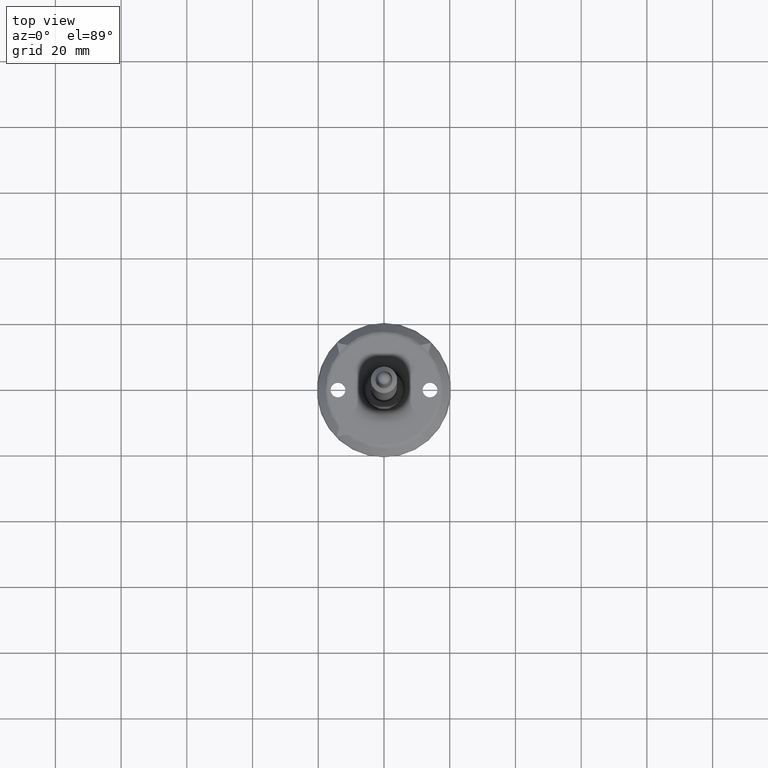
[diagram: clean part render]
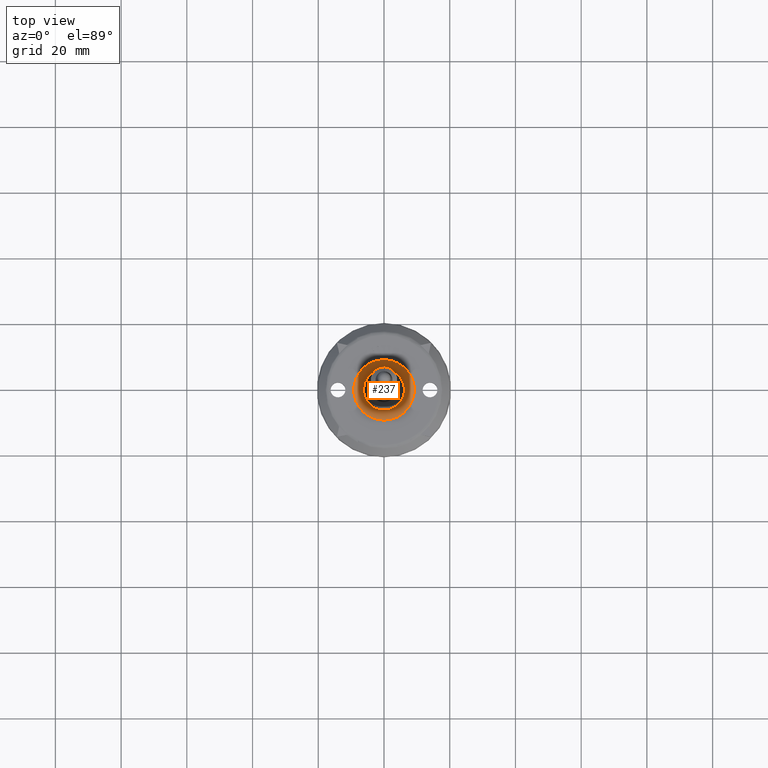
[diagram: same view with one face highlighted and labeled with its STEP entity id]
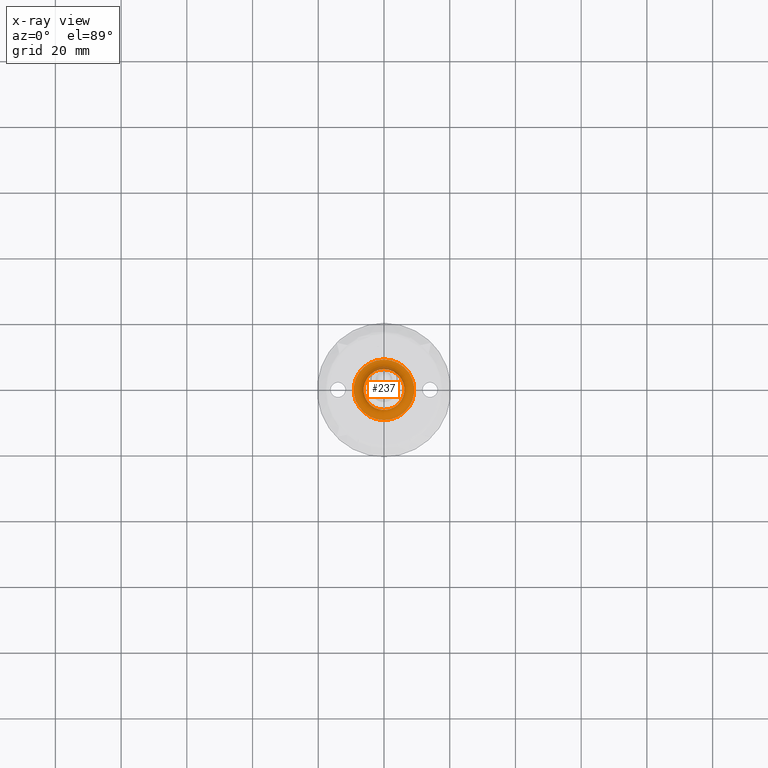
[diagram: x-ray of the same camera — body ghosted, the highlighted face saturated]
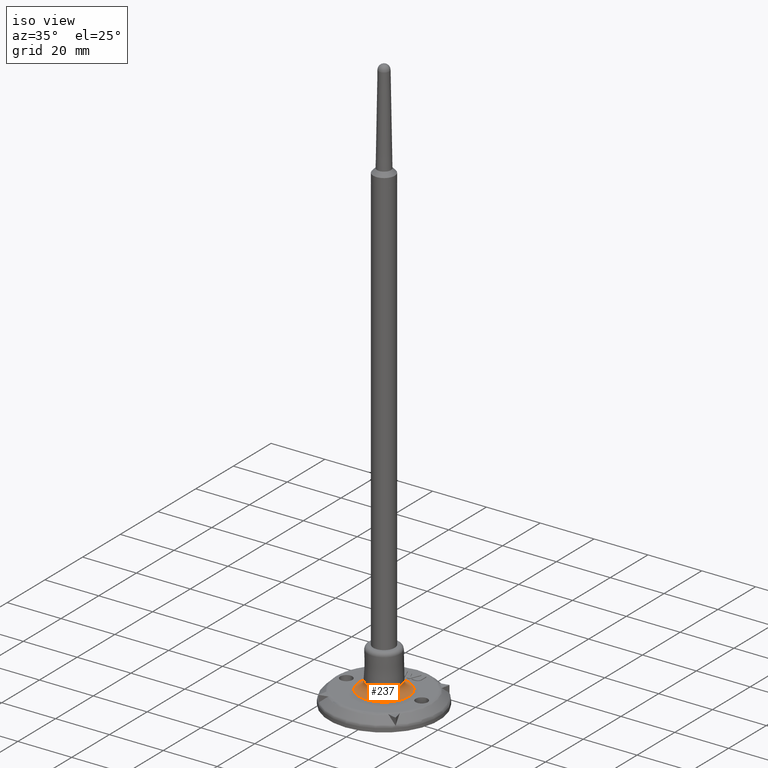
[diagram: same view with one face highlighted and labeled with its STEP entity id]
A machine part, top view. The second image highlights one B-rep face of the part: STEP entity #237.
The next image is the same camera in x-ray: the body ghosted, the highlighted face saturated — about 3% of this face is hidden behind the body in this view.
A second angle (iso view) of the same face is appended — the face is thin or edge-on in the first view.
In plain terms, the highlighted toroidal blend (fillet) surface has major radius 9.2078 mm and minor (blend) radius 2.996 mm.
Its self-contained STEP definition (entity closure, byte-faithful):
#237 = ADVANCED_FACE( '', ( #442, #443 ), #444, .F. );
#442 = FACE_OUTER_BOUND( '', #730, .T. );
#443 = FACE_OUTER_BOUND( '', #731, .T. );
#444 = TOROIDAL_SURFACE( '', #732, 9.20784984471370, 2.99601500000000 );
#730 = EDGE_LOOP( '', ( #1383 ) );
#731 = EDGE_LOOP( '', ( #1384 ) );
#732 = AXIS2_PLACEMENT_3D( '', #1385, #1386, #1387 );
#1383 = ORIENTED_EDGE( '', *, *, #1979, .F. );
#1384 = ORIENTED_EDGE( '', *, *, #1787, .F. );
#1385 = CARTESIAN_POINT( '', ( -8.99337761861512E-032, 1.46877853288022E-015, 7.99592199999999 ) );
#1386 = DIRECTION( '', ( 1.12474554136660E-032, -1.83690953073357E-016, -1.00000000000000 ) );
#1387 = DIRECTION( '', ( -6.12303176911189E-017, 1.00000000000000, -1.83690953073357E-016 ) );
#1787 = EDGE_CURVE( '', #2069, #2069, #2070, .T. );
#1979 = EDGE_CURVE( '', #2398, #2398, #2399, .F. );
#2069 = VERTEX_POINT( '', #2537 );
#2070 = CIRCLE( '', #2538, 9.20784984471370 );
#2398 = VERTEX_POINT( '', #3142 );
#2399 = CIRCLE( '', #3143, 6.21229115230973 );
#2537 = CARTESIAN_POINT( '', ( -5.63799571243939E-016, 9.20784984471370, 4.99990699999999 ) );
#2538 = AXIS2_PLACEMENT_3D( '', #3310, #3311, #3312 );
#3142 = CARTESIAN_POINT( '', ( -3.80380560845652E-016, 6.21229115230973, 7.94363432852779 ) );
#3143 = AXIS2_PLACEMENT_3D( '', #3562, #3563, #3564 );
#3310 = CARTESIAN_POINT( '', ( -5.62362310549765E-032, 9.18437682108145E-016, 4.99990699999999 ) );
#3311 = DIRECTION( '', ( 1.12474554136660E-032, -1.83690953073357E-016, -1.00000000000000 ) );
#3312 = DIRECTION( '', ( -6.12303176911189E-017, 1.00000000000000, -1.83690953073357E-016 ) );
#3562 = CARTESIAN_POINT( '', ( -8.93456729325832E-032, 1.45917376067350E-015, 7.94363432852779 ) );
#3563 = DIRECTION( '', ( 1.12474554136660E-032, -1.83690953073357E-016, -1.00000000000000 ) );
#3564 = DIRECTION( '', ( -6.12303176911189E-017, 1.00000000000000, -1.83690953073357E-016 ) );